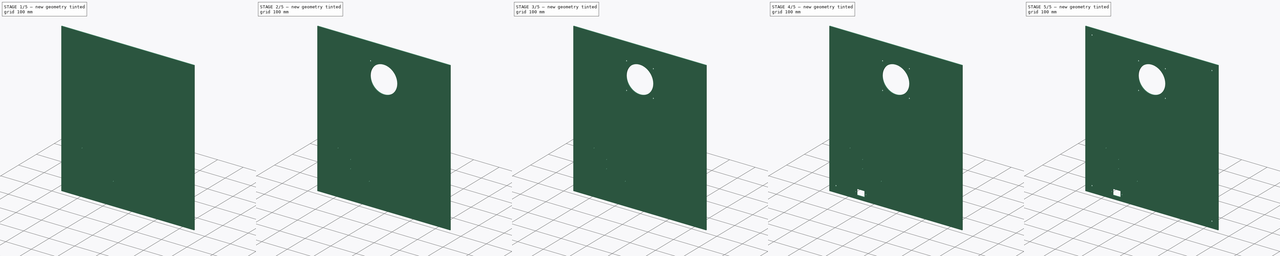
[diagram: build sequence overview — one tinted view per stage of 5, left to right]
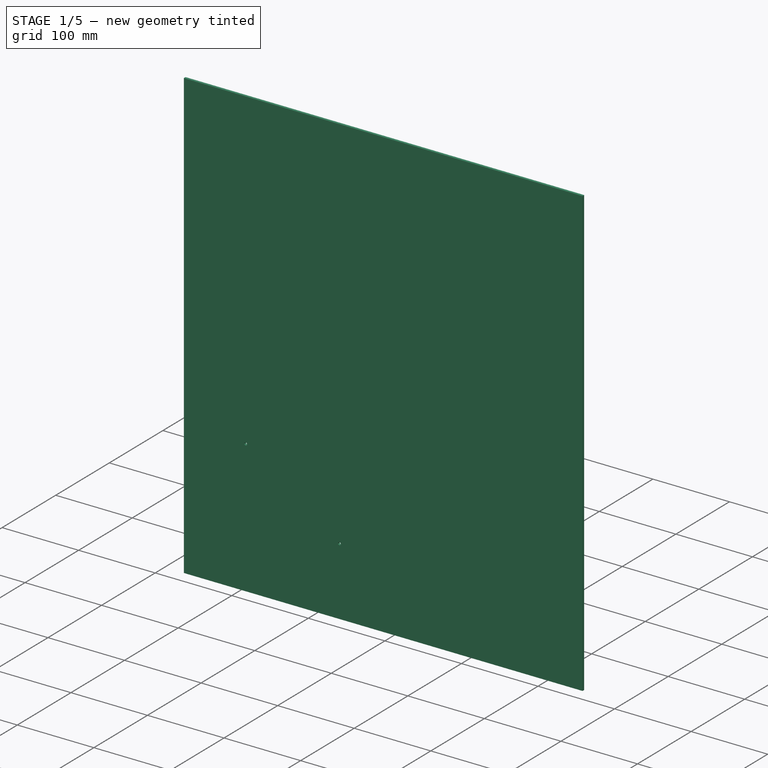
[diagram: stage 1 of 5 — iso view after this stage's code; geometry added in this stage tinted green]
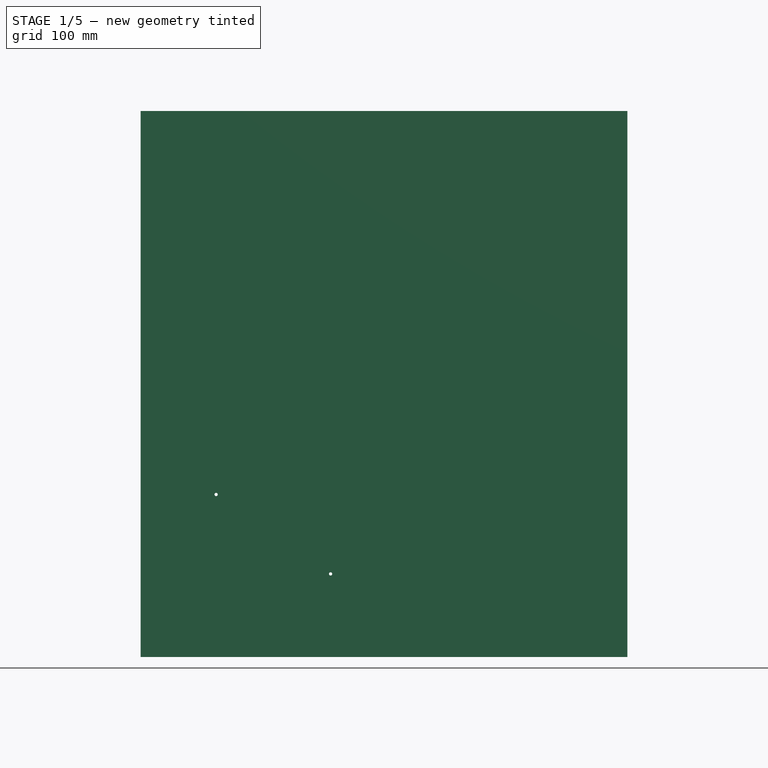
[diagram: stage 1 of 5 — front view after this stage's code; geometry added in this stage tinted green]
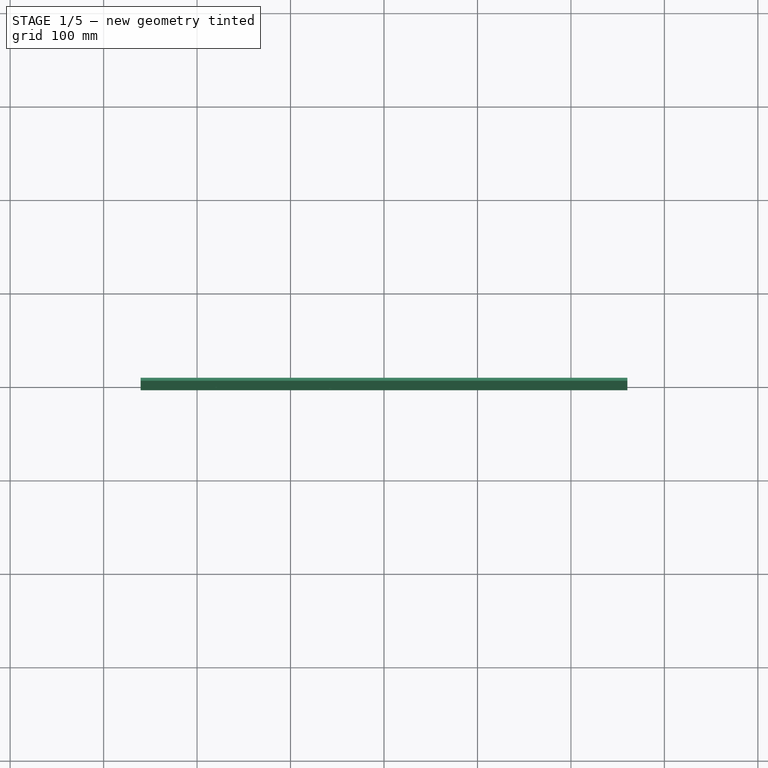
[diagram: stage 1 of 5 — top view after this stage's code; geometry added in this stage tinted green]
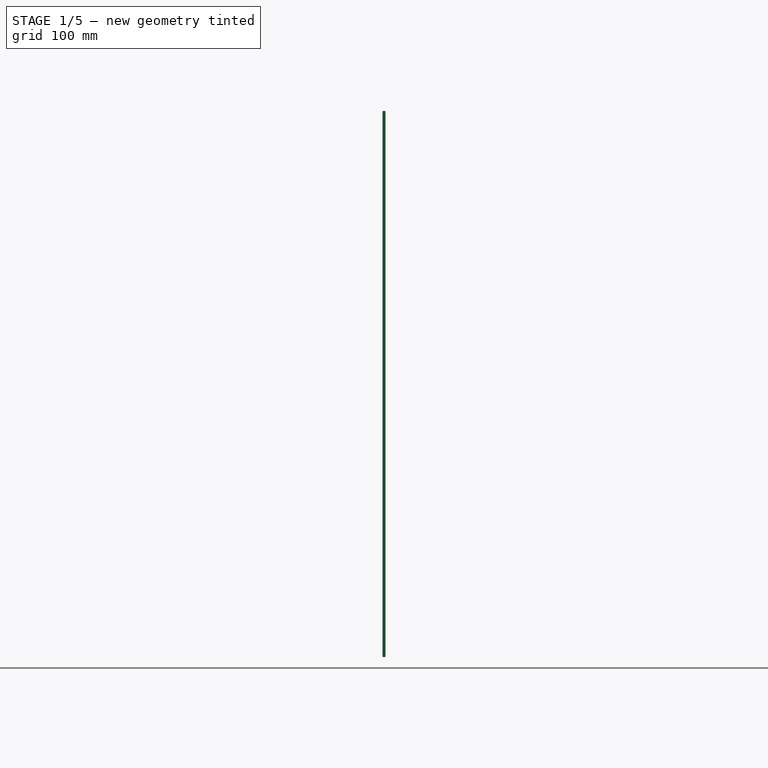
[diagram: stage 1 of 5 — right view after this stage's code; geometry added in this stage tinted green]
FCSTD DOCUMENT  (FreeCAD 0.19R24291 (Git))
Label: backpanel
License: All rights reserved
LicenseURL: http://en.wikipedia.org/wiki/All_rights_reserved
objects: PartDesign::SubtractiveCylinder×15, Sketcher::SketchObject×1, PartDesign::Pad×1, PartDesign::SubtractiveBox×1, PartDesign::Body×1
note: 36 computed .brp shape members not serialized (recipe doc carries the construction recipe); baked Part::Feature solids carry a one-line shape summary decoded from their .brp

FEATURE [Sketcher::SketchObject] Sketch
  FullyConstrained = false
  MapMode = 5
  Placement = pos=(0,0,0) rot=(1,0,0;1.5708rad)
  Support = -> [XZ_Plane]
  sketch-geometry (4):
    g0: LineSegment StartX=-260.35 StartY=-292.1 StartZ=0 EndX=260.35 EndY=-292.1 EndZ=0
    g1: LineSegment StartX=260.35 StartY=-292.1 StartZ=0 EndX=260.35 EndY=292.1 EndZ=0
    g2: LineSegment StartX=260.35 StartY=292.1 StartZ=0 EndX=-260.35 EndY=292.1 EndZ=0
    g3: LineSegment StartX=-260.35 StartY=292.1 StartZ=0 EndX=-260.35 EndY=-292.1 EndZ=0
  constraints (8):
    c: Coincident(g0,g1)
    c: Coincident(g1,g2)
    c: Coincident(g2,g3)
    c: Coincident(g3,g0)
    c: Horizontal(g0)
    c: Horizontal(g2)
    c: Vertical(g1)
    c: Vertical(g3)
FEATURE [PartDesign::Pad] Pad
  Direction = (1,1,1)
  Length = 3.175
  Length2 = 99.9998
  Placement = pos=(0,0,0) rot=(1,0,0;1.5708rad)
  Profile = -> Sketch
  Refine = true
  Type = 0
FEATURE [PartDesign::SubtractiveCylinder] Cylinder  label="pstoplefthole"
  Angle = 360
  AttacherType = Attacher::AttachEngine3D
  AttachmentOffset = pos=(-179.649,-118.199,-3.175) rot=(0,0,1;0rad)
  BaseFeature = -> Pad
  Height = 3.175
  MapMode = 5
  Placement = pos=(-179.649,-2.62e-14,-118.199) rot=(1,0,0;1.5708rad)
  Radius = 1.75
  Refine = true
  Support = -> [Pad]
FEATURE [PartDesign::SubtractiveCylinder] Cylinder001  label="psbotrighthole"
  Angle = 360
  AttacherType = Attacher::AttachEngine3D
  AttachmentOffset = pos=(122.5,-85,-3.175) rot=(0,0,1;0rad)
  BaseFeature = -> Cylinder
  Height = 3.175
  MapMode = 5
  Placement = pos=(-57.1491,-4.44e-14,-203.199) rot=(1,0,0;1.5708rad)
  Radius = 1.75
  Refine = true
  Support = -> [Cylinder]
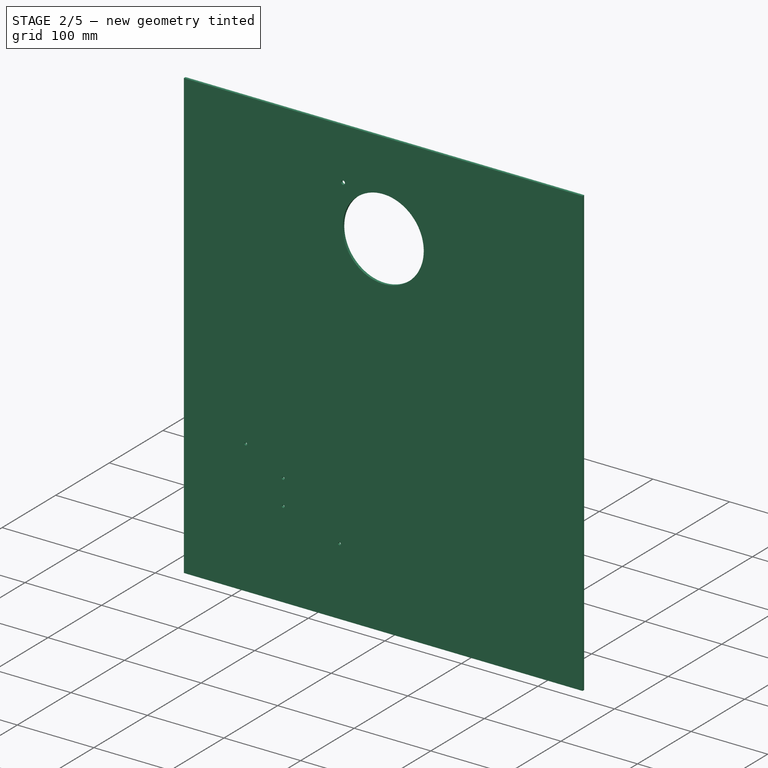
[diagram: stage 2 of 5 — iso view after this stage's code; geometry added in this stage tinted green]
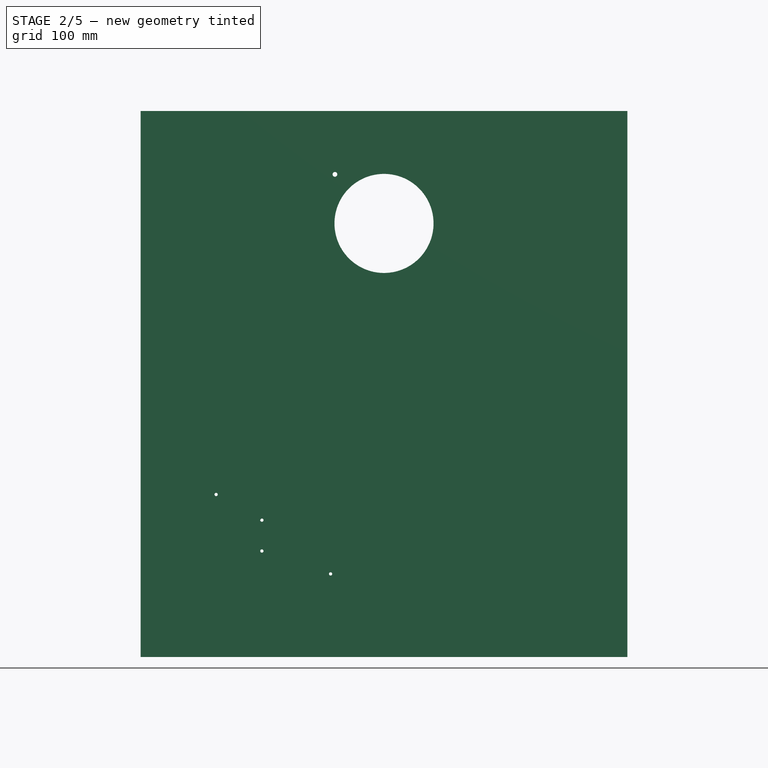
[diagram: stage 2 of 5 — front view after this stage's code; geometry added in this stage tinted green]
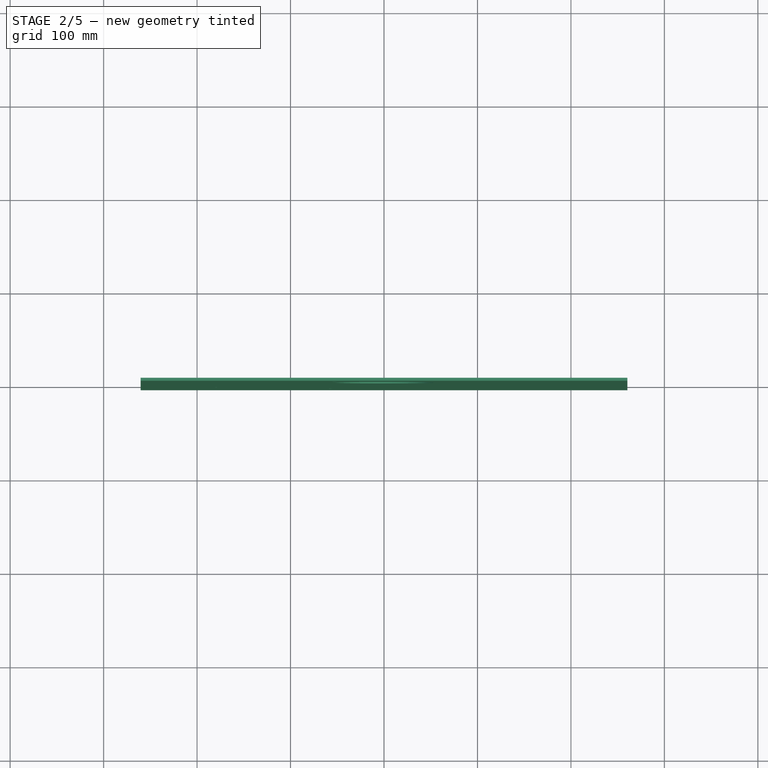
[diagram: stage 2 of 5 — top view after this stage's code; geometry added in this stage tinted green]
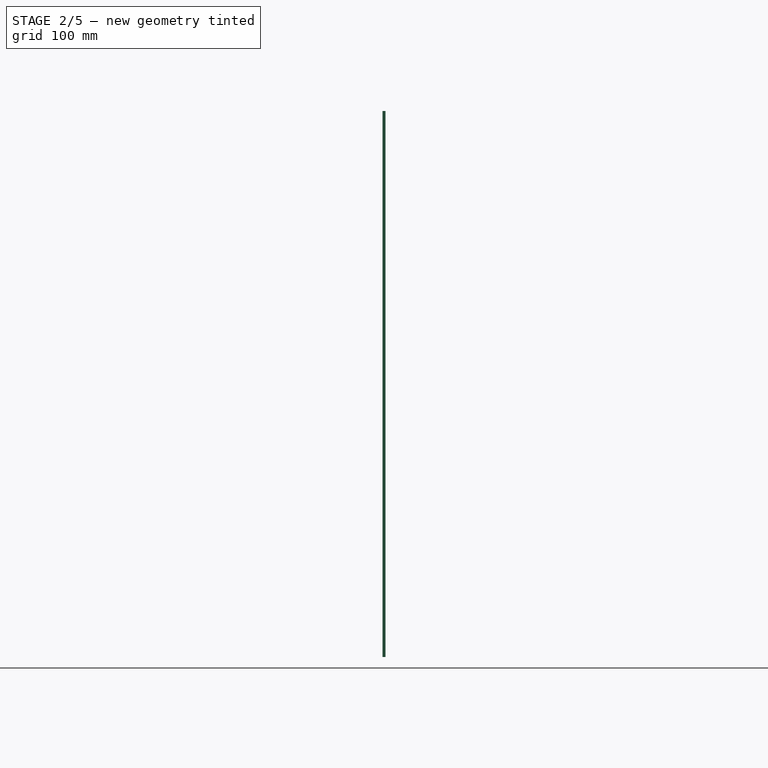
[diagram: stage 2 of 5 — right view after this stage's code; geometry added in this stage tinted green]
FEATURE [PartDesign::SubtractiveCylinder] Cylinder002  label="psbotmidhole"
  Angle = 360
  AttacherType = Attacher::AttachEngine3D
  AttachmentOffset = pos=(-73.5,24.5,-3.175) rot=(0,0,1;0rad)
  BaseFeature = -> Cylinder001
  Height = 3.175
  MapMode = 5
  Placement = pos=(-130.649,-5.15e-14,-178.699) rot=(1,0,0;1.5708rad)
  Radius = 1.75
  Refine = true
  Support = -> [Cylinder001]
FEATURE [PartDesign::SubtractiveCylinder] Cylinder003  label="pstopmidhole"
  Angle = 360
  AttacherType = Attacher::AttachEngine3D
  AttachmentOffset = pos=(0,33,-3.175) rot=(0,0,1;0rad)
  BaseFeature = -> Cylinder002
  Height = 3.175
  MapMode = 5
  Placement = pos=(-130.649,-7.19e-14,-145.699) rot=(1,0,0;1.5708rad)
  Radius = 1.75
  Refine = true
  Support = -> [Cylinder002]
FEATURE [PartDesign::SubtractiveCylinder] Cylinder004  label="fanhole"
  Angle = 360
  AttacherType = Attacher::AttachEngine3D
  AttachmentOffset = pos=(130.65,317.5,-3.175) rot=(0,0,1;0rad)
  BaseFeature = -> Cylinder003
  Height = 3.175
  MapMode = 5
  Placement = pos=(0.00086,-2.385e-13,171.801) rot=(1,0,0;1.5708rad)
  Radius = 52.9996
  Refine = true
  Support = -> [Cylinder003]
FEATURE [PartDesign::SubtractiveCylinder] Cylinder005  label="fantopleft"
  Angle = 360
  AttacherType = Attacher::AttachEngine3D
  AttachmentOffset = pos=(-52.4993,52.4993,-3.175) rot=(0,0,1;0rad)
  BaseFeature = -> Cylinder004
  Height = 3.175
  MapMode = 5
  Placement = pos=(-52.4984,-3.135e-13,224.3) rot=(1,0,0;1.5708rad)
  Radius = 2.54
  Refine = true
  Support = -> [Cylinder004]
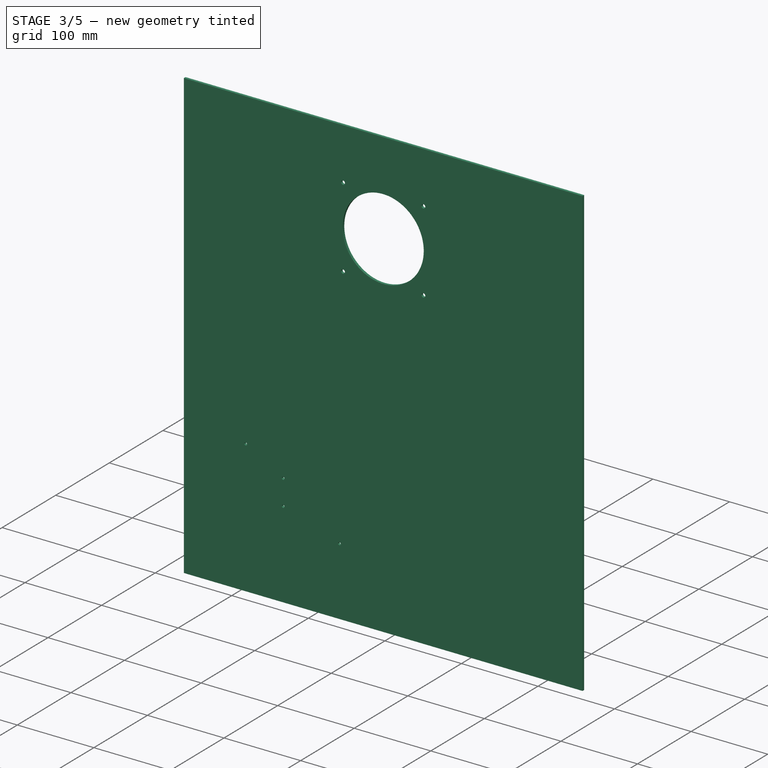
[diagram: stage 3 of 5 — iso view after this stage's code; geometry added in this stage tinted green]
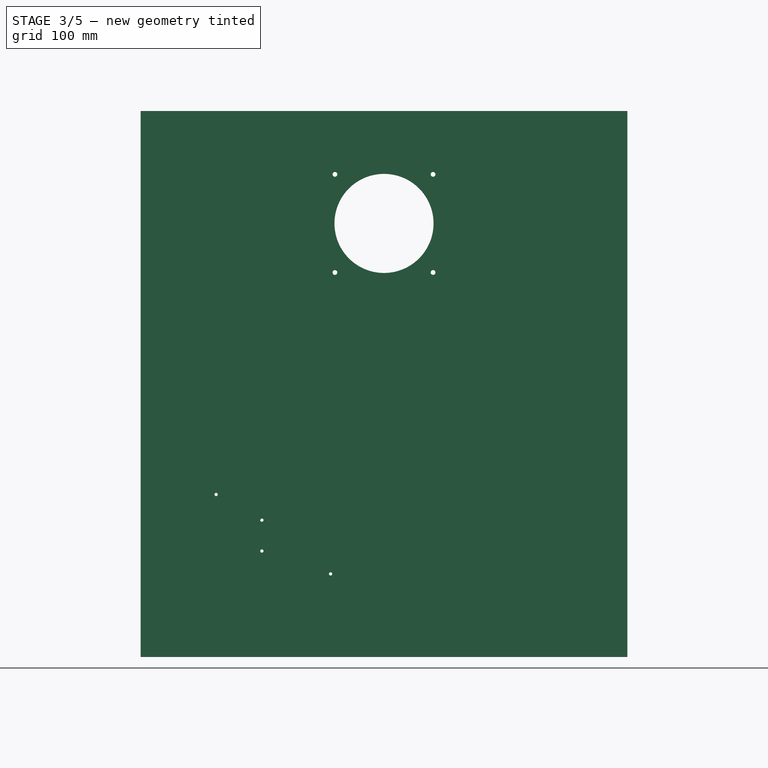
[diagram: stage 3 of 5 — front view after this stage's code; geometry added in this stage tinted green]
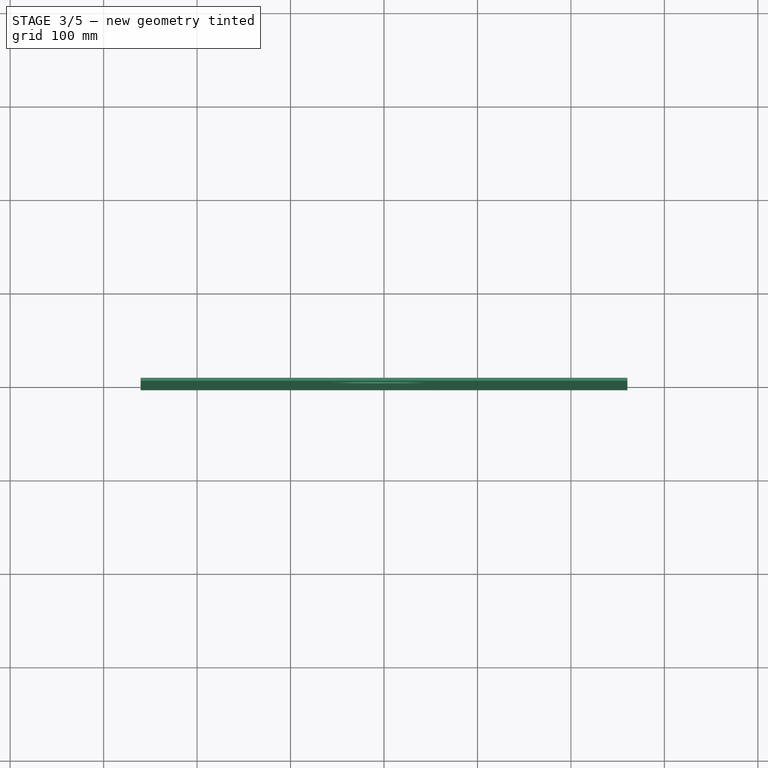
[diagram: stage 3 of 5 — top view after this stage's code; geometry added in this stage tinted green]
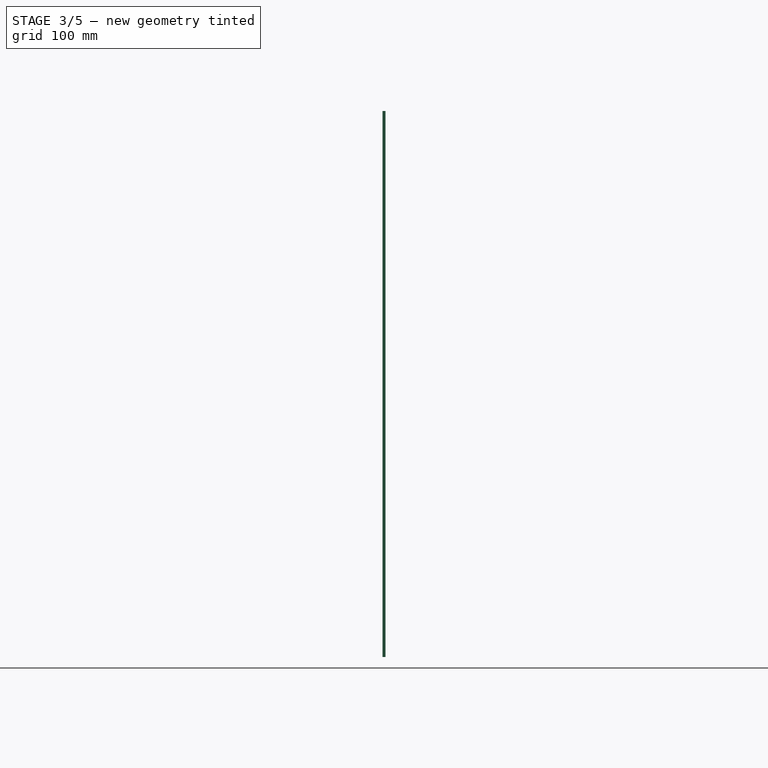
[diagram: stage 3 of 5 — right view after this stage's code; geometry added in this stage tinted green]
FEATURE [PartDesign::SubtractiveCylinder] Cylinder006  label="fantopright"
  Angle = 360
  AttacherType = Attacher::AttachEngine3D
  AttachmentOffset = pos=(104.999,0,-3.175) rot=(0,0,1;0rad)
  BaseFeature = -> Cylinder005
  Height = 3.175
  MapMode = 5
  Placement = pos=(52.5001,-3.109e-13,224.3) rot=(1,0,0;1.5708rad)
  Radius = 2.54
  Refine = true
  Support = -> [Cylinder005]
FEATURE [PartDesign::SubtractiveCylinder] Cylinder007  label="fanbotright"
  Angle = 360
  AttacherType = Attacher::AttachEngine3D
  AttachmentOffset = pos=(0,-104.999,-3.175) rot=(0,0,1;0rad)
  BaseFeature = -> Cylinder006
  Height = 3.175
  MapMode = 5
  Placement = pos=(52.5001,-2.358e-13,119.302) rot=(1,0,0;1.5708rad)
  Radius = 2.54
  Refine = true
  Support = -> [Cylinder006]
FEATURE [PartDesign::SubtractiveCylinder] Cylinder008  label="fanbotleft"
  Angle = 360
  AttacherType = Attacher::AttachEngine3D
  AttachmentOffset = pos=(-104.999,0,-3.175) rot=(0,0,1;0rad)
  BaseFeature = -> Cylinder007
  Height = 3.175
  MapMode = 5
  Placement = pos=(-52.4984,-2.398e-13,119.302) rot=(1,0,0;1.5708rad)
  Radius = 2.54
  Refine = true
  Support = -> [Cylinder007]
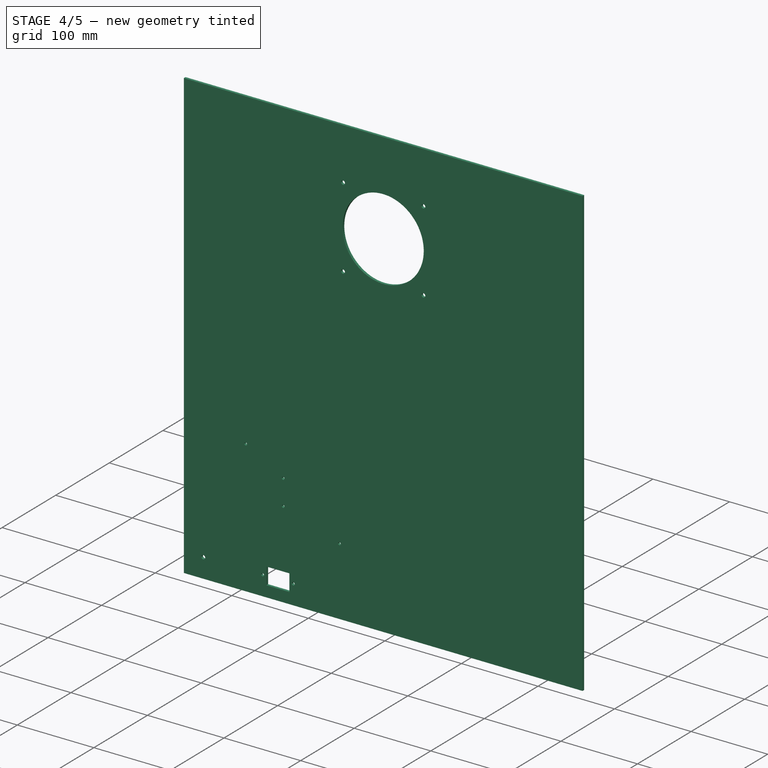
[diagram: stage 4 of 5 — iso view after this stage's code; geometry added in this stage tinted green]
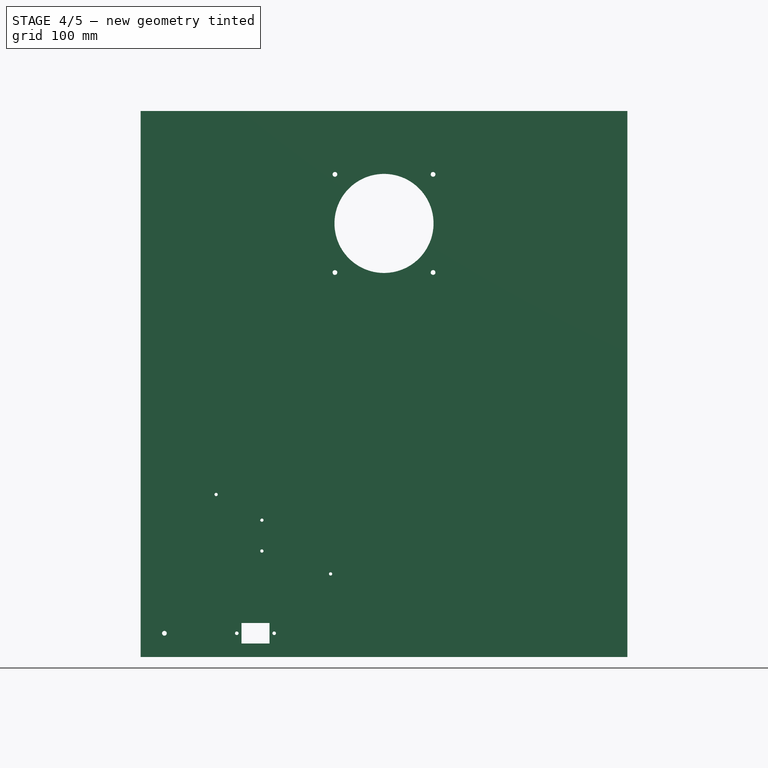
[diagram: stage 4 of 5 — front view after this stage's code; geometry added in this stage tinted green]
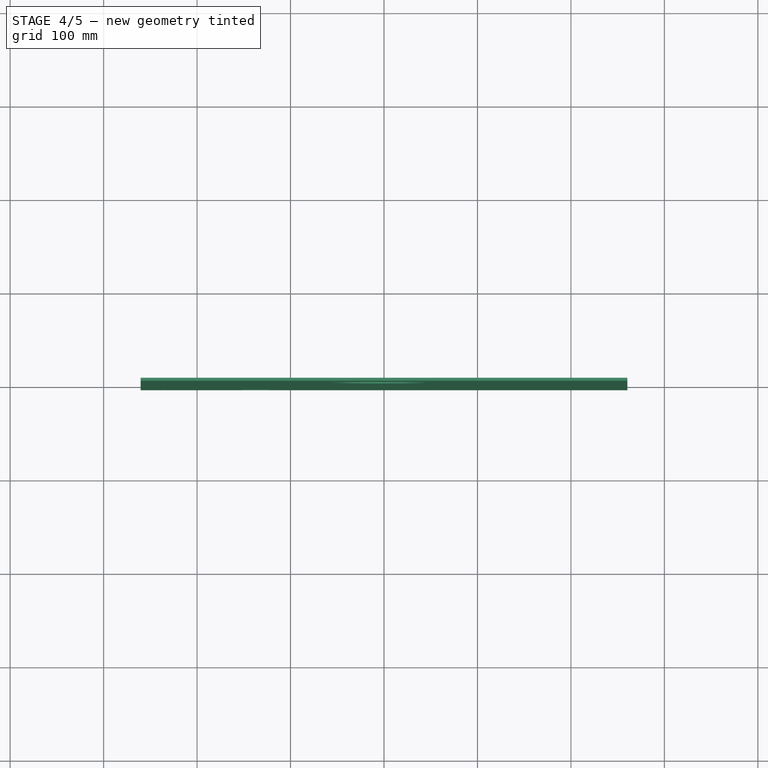
[diagram: stage 4 of 5 — top view after this stage's code; geometry added in this stage tinted green]
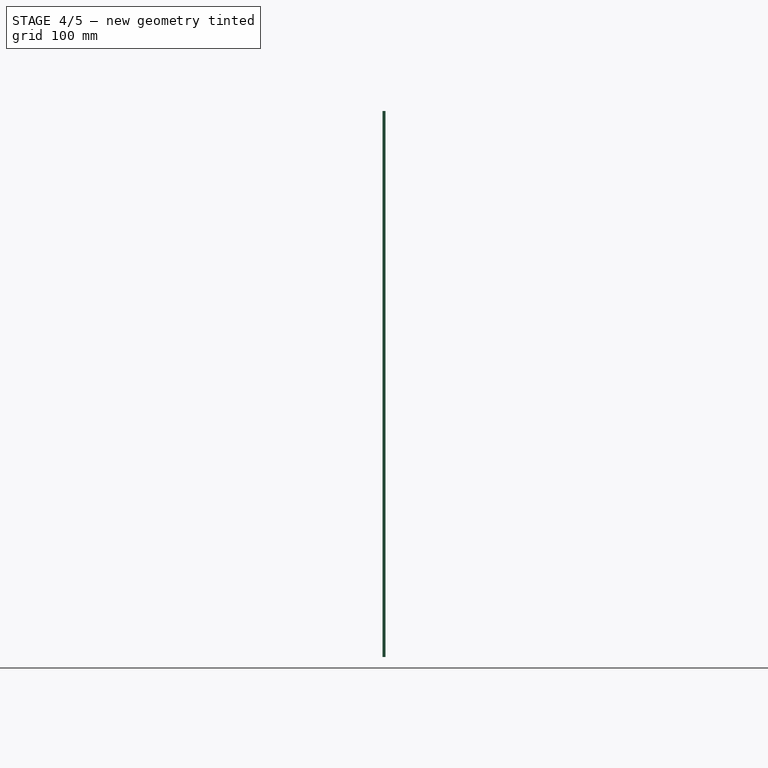
[diagram: stage 4 of 5 — right view after this stage's code; geometry added in this stage tinted green]
FEATURE [PartDesign::SubtractiveBox] Box  label="acpwrconbox"
  AttacherType = Attacher::AttachEngine3D
  AttachmentOffset = pos=(-100,-397,-3.2) rot=(0,0,1;0rad)
  BaseFeature = -> Cylinder008
  Height = 3.2
  Length = 30
  MapMode = 5
  Placement = pos=(-152.498,0.025,-277.698) rot=(1,0,0;1.5708rad)
  Refine = true
  Support = -> [Cylinder008]
  Width = 22
FEATURE [PartDesign::SubtractiveCylinder] Cylinder009  label="acpwrconlscr"
  Angle = 360
  AttacherType = Attacher::AttachEngine3D
  AttachmentOffset = pos=(-5,11,-3.2) rot=(0,0,1;0rad)
  BaseFeature = -> Box
  Height = 3.2
  MapMode = 5
  Placement = pos=(-157.498,0.025,-266.698) rot=(1,0,0;1.5708rad)
  Radius = 1.9
  Refine = true
  Support = -> [Box]
FEATURE [PartDesign::SubtractiveCylinder] Cylinder010  label="acpwrconrscr"
  Angle = 360
  AttacherType = Attacher::AttachEngine3D
  AttachmentOffset = pos=(40,0,-3.2) rot=(0,0,1;0rad)
  BaseFeature = -> Cylinder009
  Height = 3.2
  MapMode = 5
  Placement = pos=(-117.498,0.025,-266.698) rot=(1,0,0;1.5708rad)
  Radius = 1.9
  Refine = true
  Support = -> [Cylinder009]
FEATURE [PartDesign::SubtractiveCylinder] Cylinder011  label="lowerleftscrewhole"
  Angle = 360
  AttacherType = Attacher::AttachEngine3D
  AttachmentOffset = pos=(-117.452,-0.00254,-3.175) rot=(0,0,1;0rad)
  BaseFeature = -> Cylinder010
  Height = 3.175
  MapMode = 5
  Placement = pos=(-234.951,-6.26e-14,-266.701) rot=(1,0,0;1.5708rad)
  Radius = 2.54
  Refine = true
  Support = -> [Cylinder010]
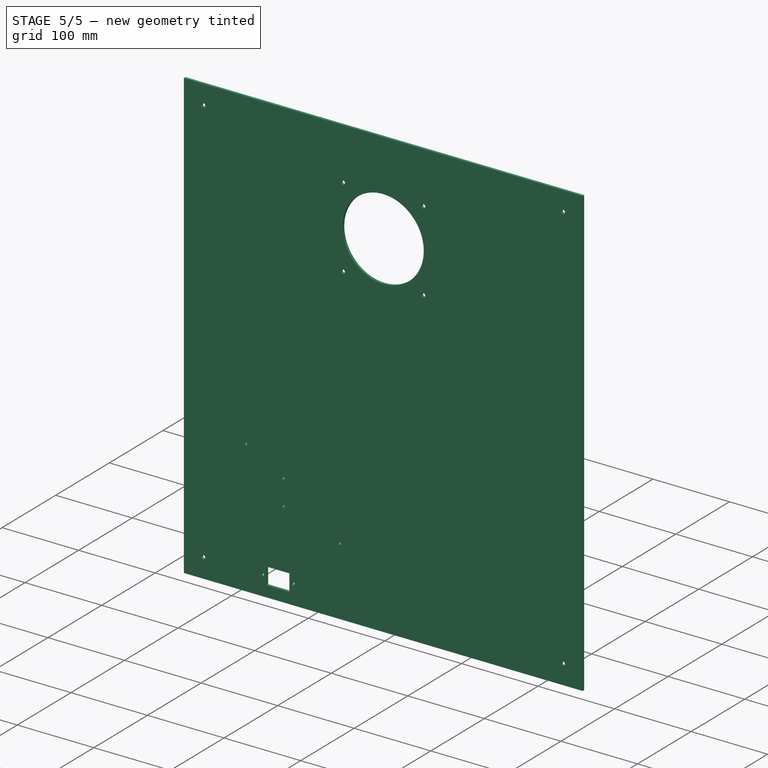
[diagram: stage 5 of 5 — iso view after this stage's code; geometry added in this stage tinted green]
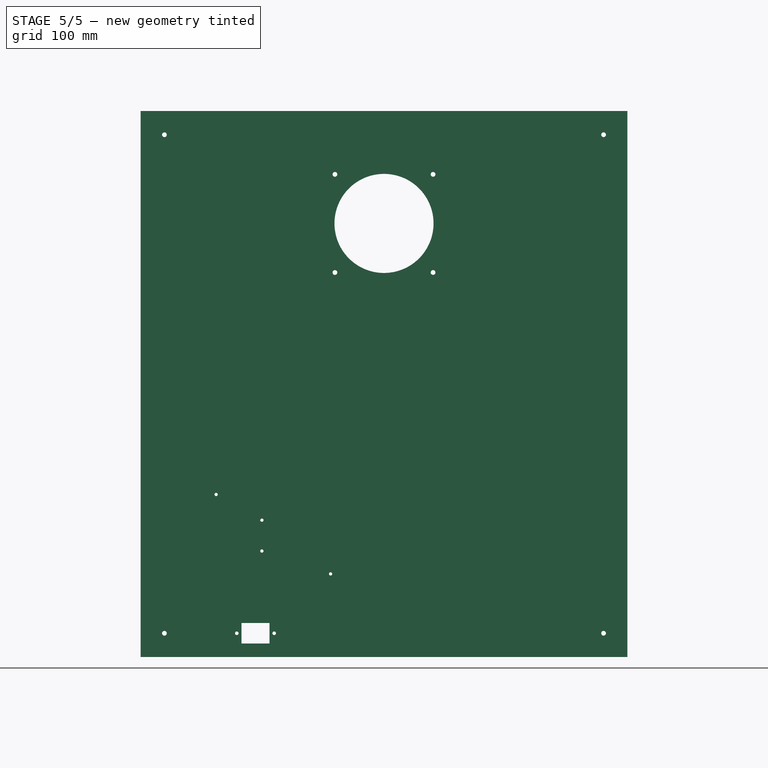
[diagram: stage 5 of 5 — front view after this stage's code; geometry added in this stage tinted green]
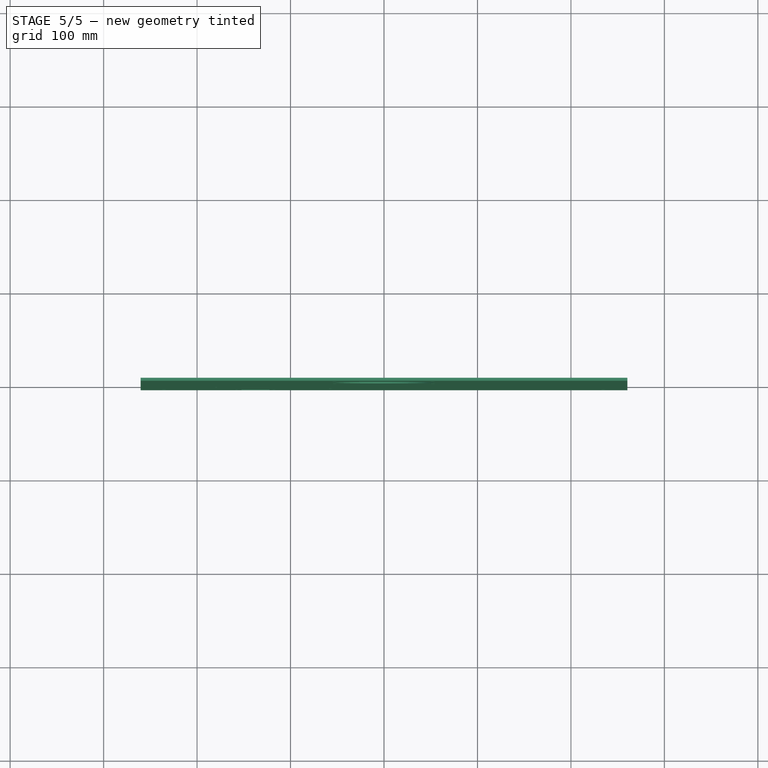
[diagram: stage 5 of 5 — top view after this stage's code; geometry added in this stage tinted green]
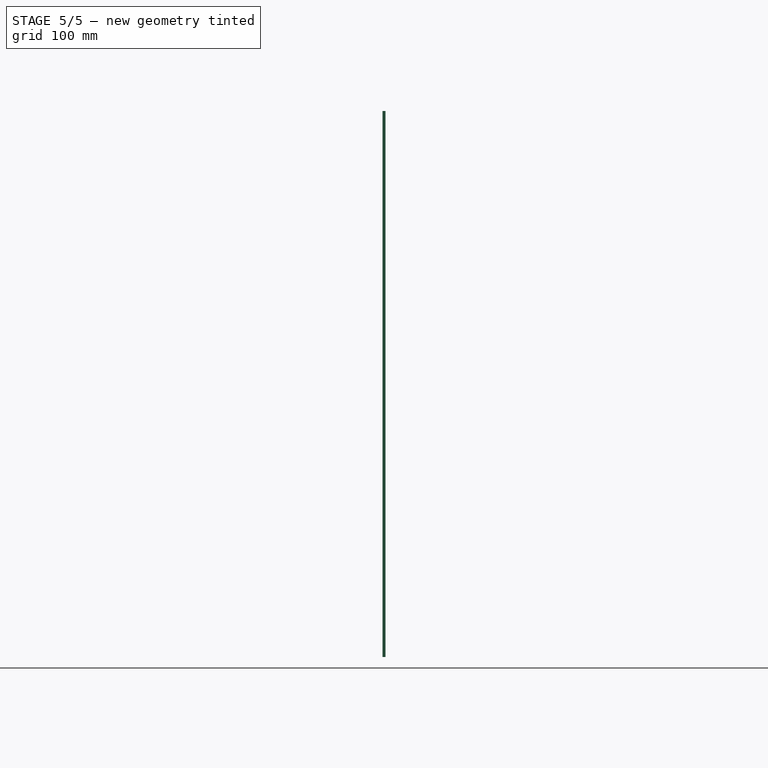
[diagram: stage 5 of 5 — right view after this stage's code; geometry added in this stage tinted green]
FEATURE [PartDesign::SubtractiveCylinder] Cylinder012  label="upperleftscrewhole"
  Angle = 360
  AttacherType = Attacher::AttachEngine3D
  AttachmentOffset = pos=(0,533.4,-3.175) rot=(0,0,1;0rad)
  BaseFeature = -> Cylinder011
  Height = 3.175
  MapMode = 5
  Placement = pos=(-234.951,-2.922e-13,266.699) rot=(1,0,0;1.5708rad)
  Radius = 2.54
  Refine = true
  Support = -> [Cylinder011]
FEATURE [PartDesign::SubtractiveCylinder] Cylinder013  label="upperrightscrewhole"
  Angle = 360
  AttacherType = Attacher::AttachEngine3D
  AttachmentOffset = pos=(469.9,0,-3.175) rot=(0,0,1;0rad)
  BaseFeature = -> Cylinder012
  Height = 3.175
  MapMode = 5
  Placement = pos=(234.949,-2.589e-13,266.699) rot=(1,0,0;1.5708rad)
  Radius = 2.54
  Refine = true
  Support = -> [Cylinder012]
FEATURE [PartDesign::SubtractiveCylinder] Cylinder014  label="lowerrightscrewhole"
  Angle = 360
  AttacherType = Attacher::AttachEngine3D
  AttachmentOffset = pos=(0,-533.4,-3.175) rot=(0,0,1;0rad)
  BaseFeature = -> Cylinder013
  Height = 3.175
  MapMode = 5
  Placement = pos=(234.949,1.057e-13,-266.701) rot=(1,0,0;1.5708rad)
  Radius = 2.54
  Refine = true
  Support = -> [Cylinder013]
FEATURE [PartDesign::Body] Body
  Group = -> [Sketch,Pad,Cylinder,Cylinder001,Cylinder002,Cylinder003,Cylinder004,Cylinder005,Cylinder006,Cylinder007,Cylinder008,Box,Cylinder009,Cylinder010,Cylinder011,Cylinder012,Cylinder013,Cylinder014]
  Origin = -> Origin
  Tip = -> Cylinder014
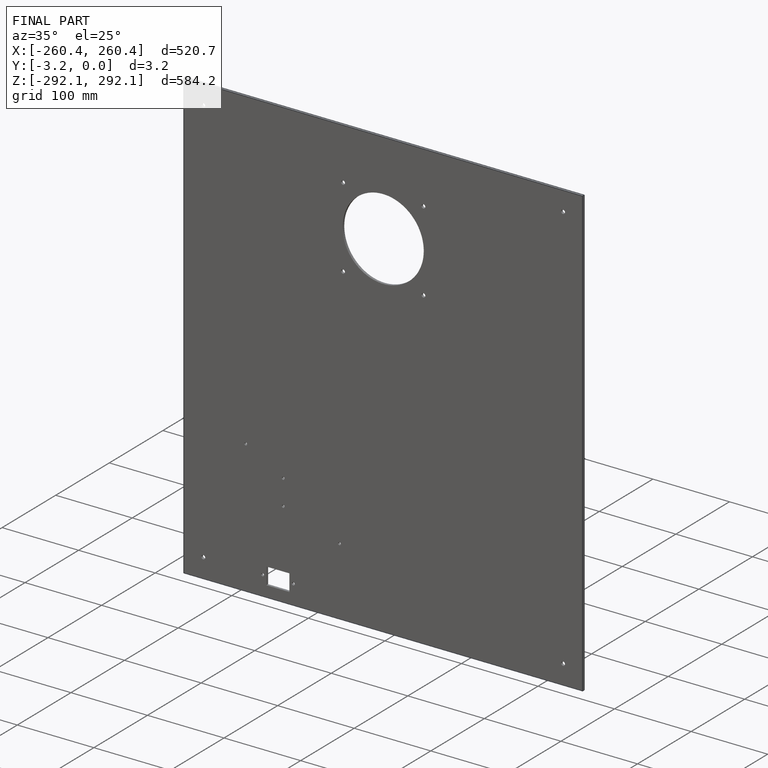
[diagram: finished part — iso view with bounding-box wireframe]
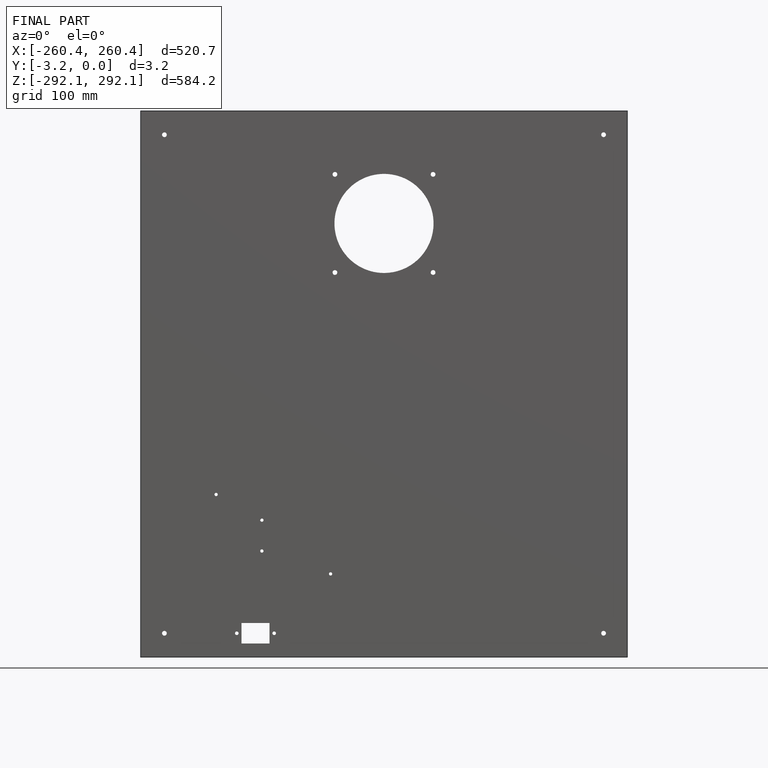
[diagram: finished part — front view with bounding-box wireframe]
